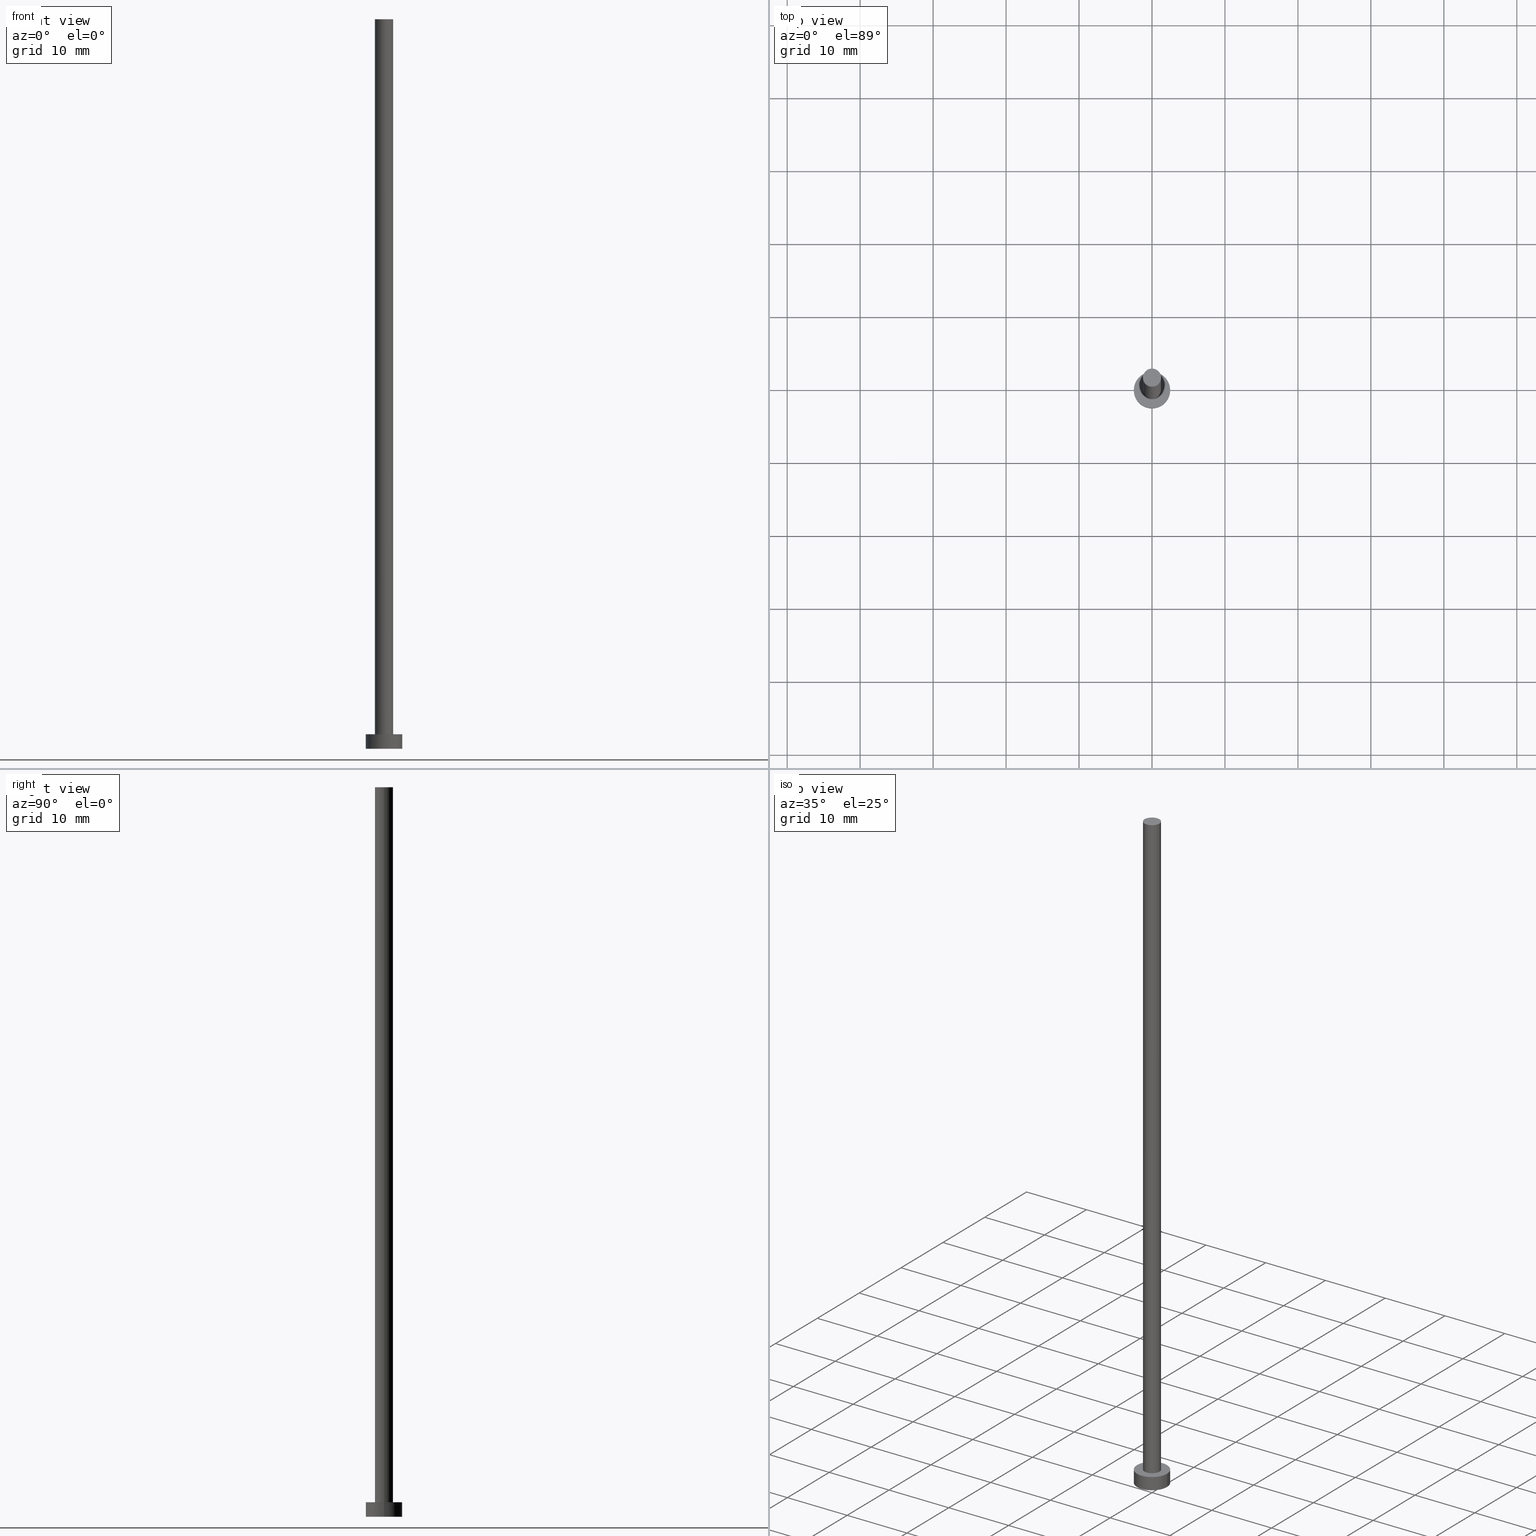
[diagram: canonical four-view strip — front | top / right | iso, engineering-drawing reading convention]
A machine part, canonical four-view strip (front | top / right | iso — engineering-drawing reading convention). The complete STEP part file that produces these views, byte-faithful:
ISO-10303-21;
HEADER;
FILE_DESCRIPTION (( 'STEP AP203' ),
    '1' );
FILE_NAME ('9475.STEP',
    '2023-02-13T14:28:34',
    ( '' ),
    ( '' ),
    'SwSTEP 2.0',
    'SolidWorks 2019',
    '' );
FILE_SCHEMA (( 'CONFIG_CONTROL_DESIGN' ));
ENDSEC;

DATA;
#1 = DIRECTION ( 'NONE',  ( 0.000000000000000000, 0.000000000000000000, 1.000000000000000000 ) ) ;
#2 = DIRECTION ( 'NONE',  ( 0.000000000000000000, 0.000000000000000000, 1.000000000000000000 ) ) ;
#3 = CALENDAR_DATE ( 2023, 13, 2 ) ;
#4 = CC_DESIGN_APPROVAL ( #147, ( #217 ) ) ;
#5 = CARTESIAN_POINT ( 'NONE',  ( 0.000000000000000000, 0.000000000000000000, 2.000000000000000000 ) ) ;
#6 = SECURITY_CLASSIFICATION_LEVEL ( 'unclassified' ) ;
#7 = FACE_OUTER_BOUND ( 'NONE', #66, .T. ) ;
#8 = PRODUCT_RELATED_PRODUCT_CATEGORY ( 'detail', '', ( #14 ) ) ;
#9 = AXIS2_PLACEMENT_3D ( 'NONE', #5, #105, #142 ) ;
#10 = CARTESIAN_POINT ( 'NONE',  ( 2.500000000000000000, 3.061616997868383141E-16, 0.000000000000000000 ) ) ;
#11 = EDGE_CURVE ( 'NONE', #49, #113, #172, .T. ) ;
#12 = ORIENTED_EDGE ( 'NONE', *, *, #74, .T. ) ;
#13 = VERTEX_POINT ( 'NONE', #80 ) ;
#14 = PRODUCT ( '9475', '9475', '', ( #211 ) ) ;
#15 = EDGE_LOOP ( 'NONE', ( #50, #111 ) ) ;
#16 = APPLICATION_PROTOCOL_DEFINITION ( 'international standard', 'config_control_design', 1994, #34 ) ;
#17 = AXIS2_PLACEMENT_3D ( 'NONE', #200, #2, #27 ) ;
#18 = AXIS2_PLACEMENT_3D ( 'NONE', #224, #132, #245 ) ;
#19 = CC_DESIGN_PERSON_AND_ORGANIZATION_ASSIGNMENT ( #171, #54, ( #14 ) ) ;
#20 =( GEOMETRIC_REPRESENTATION_CONTEXT ( 3 ) GLOBAL_UNCERTAINTY_ASSIGNED_CONTEXT ( ( #51 ) ) GLOBAL_UNIT_ASSIGNED_CONTEXT ( ( #72, #92, #31 ) ) REPRESENTATION_CONTEXT ( 'NONE', 'WORKASPACE' ) );
#21 = VERTEX_POINT ( 'NONE', #40 ) ;
#22 = DIRECTION ( 'NONE',  ( 0.000000000000000000, 0.000000000000000000, 1.000000000000000000 ) ) ;
#23 = CYLINDRICAL_SURFACE ( 'NONE', #124, 2.500000000000000000 ) ;
#24 = AXIS2_PLACEMENT_3D ( 'NONE', #162, #1, #179 ) ;
#25 = PERSON_AND_ORGANIZATION ( #204, #83 ) ;
#26 = FACE_OUTER_BOUND ( 'NONE', #225, .T. ) ;
#27 = DIRECTION ( 'NONE',  ( 1.000000000000000000, 0.000000000000000000, -0.000000000000000000 ) ) ;
#28 = CARTESIAN_POINT ( 'NONE',  ( 0.000000000000000000, 0.000000000000000000, 0.000000000000000000 ) ) ;
#29 = DIRECTION ( 'NONE',  ( -0.000000000000000000, -0.000000000000000000, -1.000000000000000000 ) ) ;
#30 = ORIENTED_EDGE ( 'NONE', *, *, #150, .T. ) ;
#31 =( NAMED_UNIT ( * ) SI_UNIT ( $, .STERADIAN. ) SOLID_ANGLE_UNIT ( ) );
#32 = AXIS2_PLACEMENT_3D ( 'NONE', #60, #123, #199 ) ;
#33 = DATE_AND_TIME ( #189, #154 ) ;
#34 = APPLICATION_CONTEXT ( 'configuration controlled 3d designs of mechanical parts and assemblies' ) ;
#35 = APPROVAL_PERSON_ORGANIZATION ( #59, #147, #75 ) ;
#36 = ADVANCED_FACE ( 'NONE', ( #122 ), #237, .T. ) ;
#37 = APPROVAL_DATE_TIME ( #76, #230 ) ;
#38 = ORIENTED_EDGE ( 'NONE', *, *, #114, .F. ) ;
#39 = DIRECTION ( 'NONE',  ( 1.000000000000000000, 0.000000000000000000, -0.000000000000000000 ) ) ;
#40 = CARTESIAN_POINT ( 'NONE',  ( 1.250000000000000000, 1.530808498934191571E-16, 100.0000000000000000 ) ) ;
#41 = CARTESIAN_POINT ( 'NONE',  ( -1.250000000000000000, 0.000000000000000000, 100.0000000000000000 ) ) ;
#42 = PERSON_AND_ORGANIZATION_ROLE ( 'design_supplier' ) ;
#43 = EDGE_CURVE ( 'NONE', #223, #13, #135, .T. ) ;
#44 = ORIENTED_EDGE ( 'NONE', *, *, #207, .F. ) ;
#45 = COORDINATED_UNIVERSAL_TIME_OFFSET ( 1, 0, .AHEAD. ) ;
#46 = CARTESIAN_POINT ( 'NONE',  ( 0.000000000000000000, 0.000000000000000000, 2.000000000000000000 ) ) ;
#47 = DIRECTION ( 'NONE',  ( 1.000000000000000000, 0.000000000000000000, -0.000000000000000000 ) ) ;
#48 = PLANE ( 'NONE',  #17 ) ;
#49 = VERTEX_POINT ( 'NONE', #180 ) ;
#50 = ORIENTED_EDGE ( 'NONE', *, *, #43, .F. ) ;
#51 = UNCERTAINTY_MEASURE_WITH_UNIT (LENGTH_MEASURE( 1.000000000000000082E-05 ), #72, 'distance_accuracy_value', 'NONE');
#52 = VECTOR ( 'NONE', #84, 1000.000000000000000 ) ;
#53 = CC_DESIGN_APPROVAL ( #98, ( #169 ) ) ;
#54 = PERSON_AND_ORGANIZATION_ROLE ( 'design_owner' ) ;
#55 = EDGE_CURVE ( 'NONE', #21, #13, #93, .T. ) ;
#56 = CARTESIAN_POINT ( 'NONE',  ( 1.250000000000000000, 1.530808498934191571E-16, 100.0000000000000000 ) ) ;
#57 = ADVANCED_FACE ( 'NONE', ( #118 ), #158, .F. ) ;
#58 = DATE_TIME_ROLE ( 'creation_date' ) ;
#59 = PERSON_AND_ORGANIZATION ( #204, #83 ) ;
#60 = CARTESIAN_POINT ( 'NONE',  ( 0.000000000000000000, 0.000000000000000000, 100.0000000000000000 ) ) ;
#61 = COORDINATED_UNIVERSAL_TIME_OFFSET ( 1, 0, .AHEAD. ) ;
#62 = CARTESIAN_POINT ( 'NONE',  ( -2.500000000000000000, 0.000000000000000000, 2.000000000000000000 ) ) ;
#63 = APPROVAL_STATUS ( 'not_yet_approved' ) ;
#64 = PLANE ( 'NONE',  #157 ) ;
#65 = ADVANCED_FACE ( 'NONE', ( #222, #7 ), #48, .T. ) ;
#66 = EDGE_LOOP ( 'NONE', ( #239, #133 ) ) ;
#67 = LINE ( 'NONE', #62, #52 ) ;
#68 = ORIENTED_EDGE ( 'NONE', *, *, #74, .F. ) ;
#69 = CIRCLE ( 'NONE', #9, 2.500000000000000000 ) ;
#70 = ORIENTED_EDGE ( 'NONE', *, *, #100, .F. ) ;
#71 = EDGE_CURVE ( 'NONE', #113, #49, #69, .T. ) ;
#72 =( LENGTH_UNIT ( ) NAMED_UNIT ( * ) SI_UNIT ( .MILLI., .METRE. ) );
#73 = CC_DESIGN_DATE_AND_TIME_ASSIGNMENT ( #33, #58, ( #217 ) ) ;
#74 = EDGE_CURVE ( 'NONE', #49, #178, #196, .T. ) ;
#75 = APPROVAL_ROLE ( '' ) ;
#76 = DATE_AND_TIME ( #90, #235 ) ;
#77 = CARTESIAN_POINT ( 'NONE',  ( 0.000000000000000000, 0.000000000000000000, 2.000000000000000000 ) ) ;
#78 = ORIENTED_EDGE ( 'NONE', *, *, #117, .T. ) ;
#79 = CARTESIAN_POINT ( 'NONE',  ( -2.500000000000000000, 0.000000000000000000, 0.000000000000000000 ) ) ;
#80 = CARTESIAN_POINT ( 'NONE',  ( 1.250000000000000000, 1.530808498934191571E-16, 2.000000000000000000 ) ) ;
#81 = CYLINDRICAL_SURFACE ( 'NONE', #32, 1.250000000000000000 ) ;
#82 = AXIS2_PLACEMENT_3D ( 'NONE', #164, #241, #202 ) ;
#83 = ORGANIZATION ( 'NEUR�EN�', 'NEUR�EN�', '' ) ;
#84 = DIRECTION ( 'NONE',  ( -0.000000000000000000, -0.000000000000000000, -1.000000000000000000 ) ) ;
#85 = DIRECTION ( 'NONE',  ( 0.000000000000000000, 0.000000000000000000, 1.000000000000000000 ) ) ;
#86 = AXIS2_PLACEMENT_3D ( 'NONE', #160, #129, #201 ) ;
#87 = AXIS2_PLACEMENT_3D ( 'NONE', #210, #136, #185 ) ;
#88 = EDGE_LOOP ( 'NONE', ( #38, #155, #183, #182 ) ) ;
#89 = CARTESIAN_POINT ( 'NONE',  ( 0.000000000000000000, 0.000000000000000000, 0.000000000000000000 ) ) ;
#90 = CALENDAR_DATE ( 2023, 13, 2 ) ;
#91 = ADVANCED_FACE ( 'NONE', ( #128 ), #64, .T. ) ;
#92 =( NAMED_UNIT ( * ) PLANE_ANGLE_UNIT ( ) SI_UNIT ( $, .RADIAN. ) );
#93 = LINE ( 'NONE', #56, #156 ) ;
#94 = CC_DESIGN_PERSON_AND_ORGANIZATION_ASSIGNMENT ( #244, #176, ( #216 ) ) ;
#95 = PRODUCT_DEFINITION_SHAPE ( 'NONE', 'NONE',  #217 ) ;
#96 = APPROVAL_DATE_TIME ( #115, #147 ) ;
#97 = CALENDAR_DATE ( 2023, 13, 2 ) ;
#98 = APPROVAL ( #63, 'NEUR�EN�' ) ;
#99 = APPLICATION_CONTEXT ( 'configuration controlled 3d designs of mechanical parts and assemblies' ) ;
#100 = EDGE_CURVE ( 'NONE', #228, #178, #102, .T. ) ;
#101 = DIRECTION ( 'NONE',  ( 0.000000000000000000, 0.000000000000000000, 1.000000000000000000 ) ) ;
#102 = CIRCLE ( 'NONE', #86, 2.500000000000000000 ) ;
#103 = CARTESIAN_POINT ( 'NONE',  ( -1.250000000000000000, 0.000000000000000000, 100.0000000000000000 ) ) ;
#104 = PERSON_AND_ORGANIZATION_ROLE ( 'classification_officer' ) ;
#105 = DIRECTION ( 'NONE',  ( 0.000000000000000000, 0.000000000000000000, 1.000000000000000000 ) ) ;
#106 = PERSON_AND_ORGANIZATION ( #204, #83 ) ;
#107 = DIRECTION ( 'NONE',  ( 0.000000000000000000, 0.000000000000000000, 1.000000000000000000 ) ) ;
#108 = DIRECTION ( 'NONE',  ( 0.000000000000000000, 0.000000000000000000, 1.000000000000000000 ) ) ;
#109 = AXIS2_PLACEMENT_3D ( 'NONE', #28, #108, #120 ) ;
#110 = COORDINATED_UNIVERSAL_TIME_OFFSET ( 1, 0, .AHEAD. ) ;
#111 = ORIENTED_EDGE ( 'NONE', *, *, #190, .F. ) ;
#112 = ORIENTED_EDGE ( 'NONE', *, *, #11, .F. ) ;
#113 = VERTEX_POINT ( 'NONE', #148 ) ;
#114 = EDGE_CURVE ( 'NONE', #21, #166, #229, .T. ) ;
#115 = DATE_AND_TIME ( #97, #125 ) ;
#116 = DIRECTION ( 'NONE',  ( 1.000000000000000000, 0.000000000000000000, 0.000000000000000000 ) ) ;
#117 = EDGE_CURVE ( 'NONE', #166, #21, #139, .T. ) ;
#118 = FACE_OUTER_BOUND ( 'NONE', #141, .T. ) ;
#119 = CC_DESIGN_PERSON_AND_ORGANIZATION_ASSIGNMENT ( #173, #254, ( #217 ) ) ;
#120 = DIRECTION ( 'NONE',  ( 1.000000000000000000, 0.000000000000000000, 0.000000000000000000 ) ) ;
#121 = PERSON_AND_ORGANIZATION ( #204, #83 ) ;
#122 = FACE_OUTER_BOUND ( 'NONE', #134, .T. ) ;
#123 = DIRECTION ( 'NONE',  ( -0.000000000000000000, -0.000000000000000000, -1.000000000000000000 ) ) ;
#124 = AXIS2_PLACEMENT_3D ( 'NONE', #243, #29, #174 ) ;
#125 = LOCAL_TIME ( 15, 28, 34.00000000000000000, #213 ) ;
#126 = MANIFOLD_SOLID_BREP ( 'P�idat vysunut�m3', #203 ) ;
#127 = DIRECTION ( 'NONE',  ( 1.000000000000000000, 0.000000000000000000, 0.000000000000000000 ) ) ;
#128 = FACE_OUTER_BOUND ( 'NONE', #248, .T. ) ;
#129 = DIRECTION ( 'NONE',  ( 0.000000000000000000, 0.000000000000000000, 1.000000000000000000 ) ) ;
#130 = AXIS2_PLACEMENT_3D ( 'NONE', #46, #107, #127 ) ;
#131 = CC_DESIGN_PERSON_AND_ORGANIZATION_ASSIGNMENT ( #121, #104, ( #169 ) ) ;
#132 = DIRECTION ( 'NONE',  ( -0.000000000000000000, -0.000000000000000000, -1.000000000000000000 ) ) ;
#133 = ORIENTED_EDGE ( 'NONE', *, *, #11, .T. ) ;
#134 = EDGE_LOOP ( 'NONE', ( #68, #251, #188, #187 ) ) ;
#135 = CIRCLE ( 'NONE', #130, 1.250000000000000000 ) ;
#136 = DIRECTION ( 'NONE',  ( -0.000000000000000000, -0.000000000000000000, -1.000000000000000000 ) ) ;
#137 = CIRCLE ( 'NONE', #109, 2.500000000000000000 ) ;
#138 = APPLICATION_PROTOCOL_DEFINITION ( 'international standard', 'config_control_design', 1994, #99 ) ;
#139 = CIRCLE ( 'NONE', #24, 1.250000000000000000 ) ;
#140 = APPROVAL_STATUS ( 'not_yet_approved' ) ;
#141 = EDGE_LOOP ( 'NONE', ( #70, #208 ) ) ;
#142 = DIRECTION ( 'NONE',  ( 1.000000000000000000, 0.000000000000000000, 0.000000000000000000 ) ) ;
#143 = CARTESIAN_POINT ( 'NONE',  ( 0.000000000000000000, 0.000000000000000000, 100.0000000000000000 ) ) ;
#144 = APPROVAL_DATE_TIME ( #165, #98 ) ;
#145 = DIRECTION ( 'NONE',  ( 1.000000000000000000, 0.000000000000000000, 0.000000000000000000 ) ) ;
#146 = PERSON_AND_ORGANIZATION ( #204, #83 ) ;
#147 = APPROVAL ( #140, 'NEUR�EN�' ) ;
#148 = CARTESIAN_POINT ( 'NONE',  ( -2.500000000000000000, 0.000000000000000000, 2.000000000000000000 ) ) ;
#149 = CARTESIAN_POINT ( 'NONE',  ( -1.250000000000000000, 0.000000000000000000, 2.000000000000000000 ) ) ;
#150 = EDGE_CURVE ( 'NONE', #178, #228, #137, .T. ) ;
#151 = ORIENTED_EDGE ( 'NONE', *, *, #198, .T. ) ;
#152 = ADVANCED_BREP_SHAPE_REPRESENTATION ( '9475', ( #126, #231 ), #20 ) ;
#153 = EDGE_LOOP ( 'NONE', ( #112, #12, #30, #44 ) ) ;
#154 = LOCAL_TIME ( 15, 28, 34.00000000000000000, #236 ) ;
#155 = ORIENTED_EDGE ( 'NONE', *, *, #55, .T. ) ;
#156 = VECTOR ( 'NONE', #215, 1000.000000000000000 ) ;
#157 = AXIS2_PLACEMENT_3D ( 'NONE', #143, #85, #39 ) ;
#158 = PLANE ( 'NONE',  #175 ) ;
#159 = DIRECTION ( 'NONE',  ( 1.000000000000000000, 0.000000000000000000, 0.000000000000000000 ) ) ;
#160 = CARTESIAN_POINT ( 'NONE',  ( 0.000000000000000000, 0.000000000000000000, 0.000000000000000000 ) ) ;
#161 = CARTESIAN_POINT ( 'NONE',  ( 0.000000000000000000, 0.000000000000000000, 100.0000000000000000 ) ) ;
#162 = CARTESIAN_POINT ( 'NONE',  ( 0.000000000000000000, 0.000000000000000000, 100.0000000000000000 ) ) ;
#163 = CALENDAR_DATE ( 2023, 13, 2 ) ;
#164 = CARTESIAN_POINT ( 'NONE',  ( 0.000000000000000000, 0.000000000000000000, 2.000000000000000000 ) ) ;
#165 = DATE_AND_TIME ( #3, #234 ) ;
#166 = VERTEX_POINT ( 'NONE', #41 ) ;
#167 = DIRECTION ( 'NONE',  ( -0.000000000000000000, -0.000000000000000000, -1.000000000000000000 ) ) ;
#168 = APPROVAL_PERSON_ORGANIZATION ( #146, #98, #221 ) ;
#169 = SECURITY_CLASSIFICATION ( '', '', #6 ) ;
#170 = CC_DESIGN_SECURITY_CLASSIFICATION ( #169, ( #216 ) ) ;
#171 = PERSON_AND_ORGANIZATION ( #204, #83 ) ;
#172 = CIRCLE ( 'NONE', #246, 2.500000000000000000 ) ;
#173 = PERSON_AND_ORGANIZATION ( #204, #83 ) ;
#174 = DIRECTION ( 'NONE',  ( -1.000000000000000000, 0.000000000000000000, 0.000000000000000000 ) ) ;
#175 = AXIS2_PLACEMENT_3D ( 'NONE', #194, #22, #47 ) ;
#176 = PERSON_AND_ORGANIZATION_ROLE ( 'creator' ) ;
#177 = DATE_AND_TIME ( #163, #232 ) ;
#178 = VERTEX_POINT ( 'NONE', #10 ) ;
#179 = DIRECTION ( 'NONE',  ( 1.000000000000000000, 0.000000000000000000, 0.000000000000000000 ) ) ;
#180 = CARTESIAN_POINT ( 'NONE',  ( 2.500000000000000000, 3.061616997868383141E-16, 2.000000000000000000 ) ) ;
#181 = CARTESIAN_POINT ( 'NONE',  ( 2.500000000000000000, 3.061616997868383141E-16, 2.000000000000000000 ) ) ;
#182 = ORIENTED_EDGE ( 'NONE', *, *, #198, .F. ) ;
#183 = ORIENTED_EDGE ( 'NONE', *, *, #190, .T. ) ;
#184 = APPROVAL_ROLE ( '' ) ;
#185 = DIRECTION ( 'NONE',  ( -1.000000000000000000, 0.000000000000000000, 0.000000000000000000 ) ) ;
#186 = CC_DESIGN_DATE_AND_TIME_ASSIGNMENT ( #177, #197, ( #169 ) ) ;
#187 = ORIENTED_EDGE ( 'NONE', *, *, #100, .T. ) ;
#188 = ORIENTED_EDGE ( 'NONE', *, *, #207, .T. ) ;
#189 = CALENDAR_DATE ( 2023, 13, 2 ) ;
#190 = EDGE_CURVE ( 'NONE', #13, #223, #255, .T. ) ;
#191 = DESIGN_CONTEXT ( 'detailed design', #99, 'design' ) ;
#192 = DIRECTION ( 'NONE',  ( 0.000000000000000000, 0.000000000000000000, 1.000000000000000000 ) ) ;
#193 = ORIENTED_EDGE ( 'NONE', *, *, #114, .T. ) ;
#194 = CARTESIAN_POINT ( 'NONE',  ( 0.000000000000000000, 0.000000000000000000, 0.000000000000000000 ) ) ;
#195 = APPROVAL_STATUS ( 'not_yet_approved' ) ;
#196 = LINE ( 'NONE', #181, #212 ) ;
#197 = DATE_TIME_ROLE ( 'classification_date' ) ;
#198 = EDGE_CURVE ( 'NONE', #166, #223, #247, .T. ) ;
#199 = DIRECTION ( 'NONE',  ( -1.000000000000000000, 0.000000000000000000, 0.000000000000000000 ) ) ;
#200 = CARTESIAN_POINT ( 'NONE',  ( 0.000000000000000000, 0.000000000000000000, 2.000000000000000000 ) ) ;
#201 = DIRECTION ( 'NONE',  ( 1.000000000000000000, 0.000000000000000000, 0.000000000000000000 ) ) ;
#202 = DIRECTION ( 'NONE',  ( 1.000000000000000000, 0.000000000000000000, 0.000000000000000000 ) ) ;
#203 = CLOSED_SHELL ( 'NONE', ( #238, #226, #36, #65, #57, #253, #91 ) ) ;
#204 = PERSON ( 'NEUR�EN�', 'NEUR�EN�', 'NEUR�EN�', ('NEUR�EN�'), ('NEUR�EN�'), ('NEUR�EN�') ) ;
#205 = ORIENTED_EDGE ( 'NONE', *, *, #43, .T. ) ;
#206 = ORIENTED_EDGE ( 'NONE', *, *, #117, .F. ) ;
#207 = EDGE_CURVE ( 'NONE', #113, #228, #67, .T. ) ;
#208 = ORIENTED_EDGE ( 'NONE', *, *, #150, .F. ) ;
#209 = CC_DESIGN_APPROVAL ( #230, ( #216 ) ) ;
#210 = CARTESIAN_POINT ( 'NONE',  ( 0.000000000000000000, 0.000000000000000000, 100.0000000000000000 ) ) ;
#211 = MECHANICAL_CONTEXT ( 'NONE', #34, 'mechanical' ) ;
#212 = VECTOR ( 'NONE', #167, 1000.000000000000000 ) ;
#213 = COORDINATED_UNIVERSAL_TIME_OFFSET ( 1, 0, .AHEAD. ) ;
#214 = DIRECTION ( 'NONE',  ( 0.000000000000000000, 0.000000000000000000, 1.000000000000000000 ) ) ;
#215 = DIRECTION ( 'NONE',  ( -0.000000000000000000, -0.000000000000000000, -1.000000000000000000 ) ) ;
#216 = PRODUCT_DEFINITION_FORMATION_WITH_SPECIFIED_SOURCE ( 'LIBOVOLN�', '', #14, .NOT_KNOWN. ) ;
#217 = PRODUCT_DEFINITION ( 'NEZN�M�', '', #216, #191 ) ;
#218 = DIRECTION ( 'NONE',  ( -0.000000000000000000, -0.000000000000000000, -1.000000000000000000 ) ) ;
#219 = ORIENTED_EDGE ( 'NONE', *, *, #55, .F. ) ;
#220 = FACE_OUTER_BOUND ( 'NONE', #153, .T. ) ;
#221 = APPROVAL_ROLE ( '' ) ;
#222 = FACE_BOUND ( 'NONE', #15, .T. ) ;
#223 = VERTEX_POINT ( 'NONE', #149 ) ;
#224 = CARTESIAN_POINT ( 'NONE',  ( 0.000000000000000000, 0.000000000000000000, 2.000000000000000000 ) ) ;
#225 = EDGE_LOOP ( 'NONE', ( #219, #206, #151, #205 ) ) ;
#226 = ADVANCED_FACE ( 'NONE', ( #220 ), #23, .T. ) ;
#227 = APPROVAL_PERSON_ORGANIZATION ( #25, #230, #184 ) ;
#228 = VERTEX_POINT ( 'NONE', #79 ) ;
#229 = CIRCLE ( 'NONE', #250, 1.250000000000000000 ) ;
#230 = APPROVAL ( #195, 'NEUR�EN�' ) ;
#231 = AXIS2_PLACEMENT_3D ( 'NONE', #89, #192, #116 ) ;
#232 = LOCAL_TIME ( 15, 28, 34.00000000000000000, #61 ) ;
#233 = CC_DESIGN_PERSON_AND_ORGANIZATION_ASSIGNMENT ( #106, #42, ( #216 ) ) ;
#234 = LOCAL_TIME ( 15, 28, 34.00000000000000000, #45 ) ;
#235 = LOCAL_TIME ( 15, 28, 34.00000000000000000, #110 ) ;
#236 = COORDINATED_UNIVERSAL_TIME_OFFSET ( 1, 0, .AHEAD. ) ;
#237 = CYLINDRICAL_SURFACE ( 'NONE', #18, 2.500000000000000000 ) ;
#238 = ADVANCED_FACE ( 'NONE', ( #240 ), #81, .T. ) ;
#239 = ORIENTED_EDGE ( 'NONE', *, *, #71, .T. ) ;
#240 = FACE_OUTER_BOUND ( 'NONE', #88, .T. ) ;
#241 = DIRECTION ( 'NONE',  ( 0.000000000000000000, 0.000000000000000000, 1.000000000000000000 ) ) ;
#242 = SHAPE_DEFINITION_REPRESENTATION ( #95, #152 ) ;
#243 = CARTESIAN_POINT ( 'NONE',  ( 0.000000000000000000, 0.000000000000000000, 2.000000000000000000 ) ) ;
#244 = PERSON_AND_ORGANIZATION ( #204, #83 ) ;
#245 = DIRECTION ( 'NONE',  ( -1.000000000000000000, 0.000000000000000000, 0.000000000000000000 ) ) ;
#246 = AXIS2_PLACEMENT_3D ( 'NONE', #77, #214, #159 ) ;
#247 = LINE ( 'NONE', #103, #252 ) ;
#248 = EDGE_LOOP ( 'NONE', ( #78, #193 ) ) ;
#249 = CYLINDRICAL_SURFACE ( 'NONE', #87, 1.250000000000000000 ) ;
#250 = AXIS2_PLACEMENT_3D ( 'NONE', #161, #101, #145 ) ;
#251 = ORIENTED_EDGE ( 'NONE', *, *, #71, .F. ) ;
#252 = VECTOR ( 'NONE', #218, 1000.000000000000000 ) ;
#253 = ADVANCED_FACE ( 'NONE', ( #26 ), #249, .T. ) ;
#254 = PERSON_AND_ORGANIZATION_ROLE ( 'creator' ) ;
#255 = CIRCLE ( 'NONE', #82, 1.250000000000000000 ) ;
ENDSEC;
END-ISO-10303-21;
